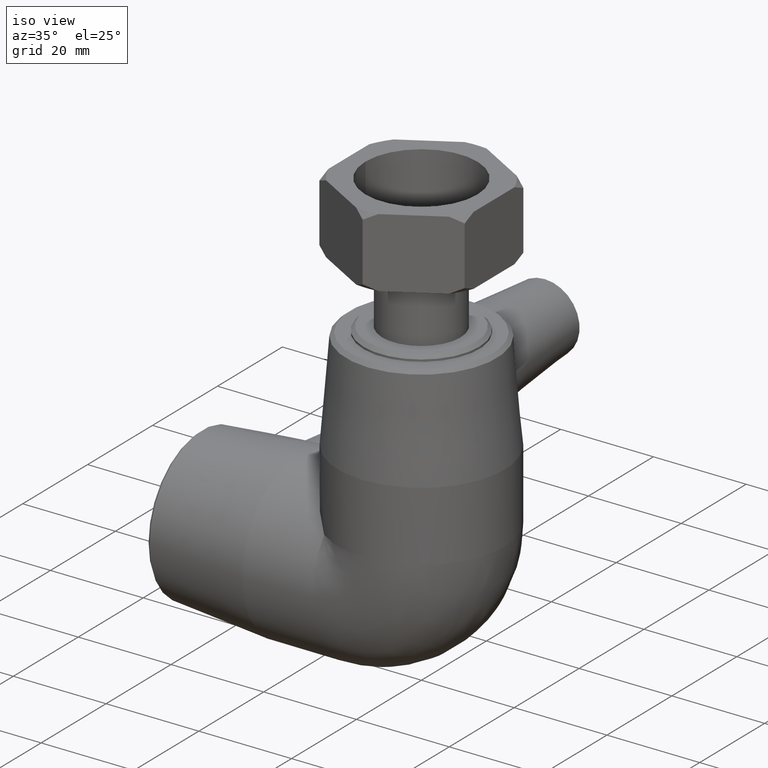
[diagram: clean part render]
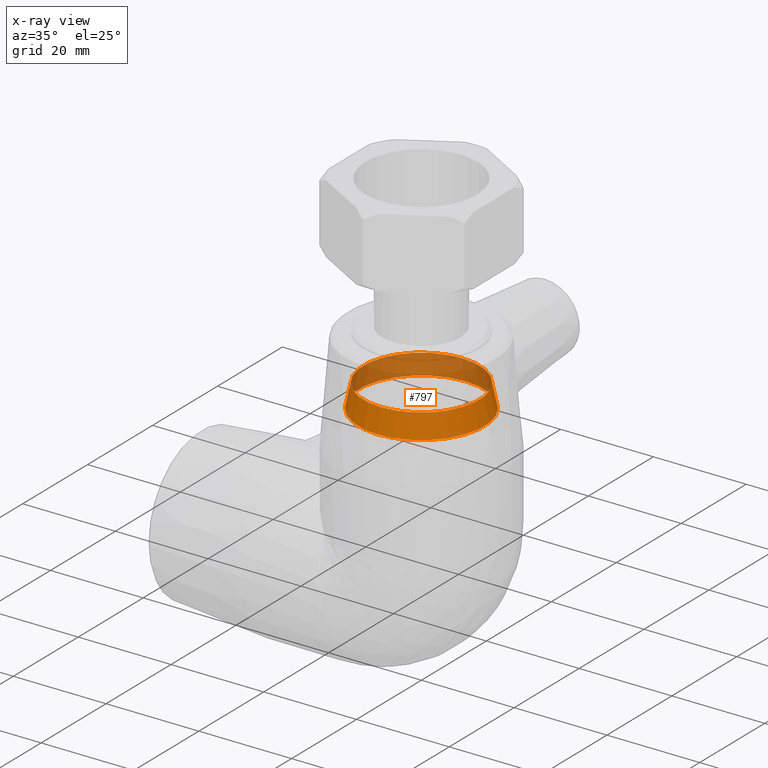
[diagram: x-ray — body ghosted, one internal face saturated and labeled with its STEP entity id]
A machine part, iso view, then the same camera in x-ray: the body is ghosted and one INTERNAL B-rep face — a face not visible from any outside direction — is saturated and labeled: STEP entity #797.
In plain terms, the highlighted conical surface has half-angle 12 deg.
Its self-contained STEP definition (entity closure, byte-faithful):
#123=FACE_BOUND('',#230,.T.);
#166=FACE_OUTER_BOUND('',#229,.T.);
#229=EDGE_LOOP('',(#571));
#230=EDGE_LOOP('',(#572));
#335=CIRCLE('',#865,12.5);
#336=CIRCLE('',#866,13.5486123709054);
#389=VERTEX_POINT('',#1244);
#390=VERTEX_POINT('',#1246);
#469=EDGE_CURVE('',#389,#389,#335,.T.);
#470=EDGE_CURVE('',#390,#390,#336,.T.);
#571=ORIENTED_EDGE('',*,*,#469,.F.);
#572=ORIENTED_EDGE('',*,*,#470,.T.);
#775=CONICAL_SURFACE('',#864,13.0243061854527,12.);
#797=ADVANCED_FACE('',(#166,#123),#775,.F.);
#864=AXIS2_PLACEMENT_3D('',#1243,#985,#986);
#865=AXIS2_PLACEMENT_3D('',#1245,#987,#988);
#866=AXIS2_PLACEMENT_3D('',#1247,#989,#990);
#985=DIRECTION('center_axis',(6.12323399573677E-17,-2.89120579329468E-18,
-1.));
#986=DIRECTION('ref_axis',(0.,1.,0.));
#987=DIRECTION('center_axis',(6.12323399573677E-17,-2.89120579329468E-18,
-1.));
#988=DIRECTION('ref_axis',(-1.,0.,-6.12323399573677E-17));
#989=DIRECTION('center_axis',(6.12323399573677E-17,-2.89120579329468E-18,
-1.));
#990=DIRECTION('ref_axis',(-1.,0.,-6.12323399573677E-17));
#1243=CARTESIAN_POINT('Origin',(-2.18395345847945E-15,-3.56582047839677E-17,
35.6666666666667));
#1244=CARTESIAN_POINT('',(-2.33499323037429E-15,12.5,38.1333333333333));
#1245=CARTESIAN_POINT('Origin',(-2.33499323037429E-15,-2.85265638271742E-17,
38.1333333333333));
#1246=CARTESIAN_POINT('',(-2.03291368658461E-15,13.5486123709054,33.2));
#1247=CARTESIAN_POINT('Origin',(-2.03291368658461E-15,-4.27898457407612E-17,
33.2));